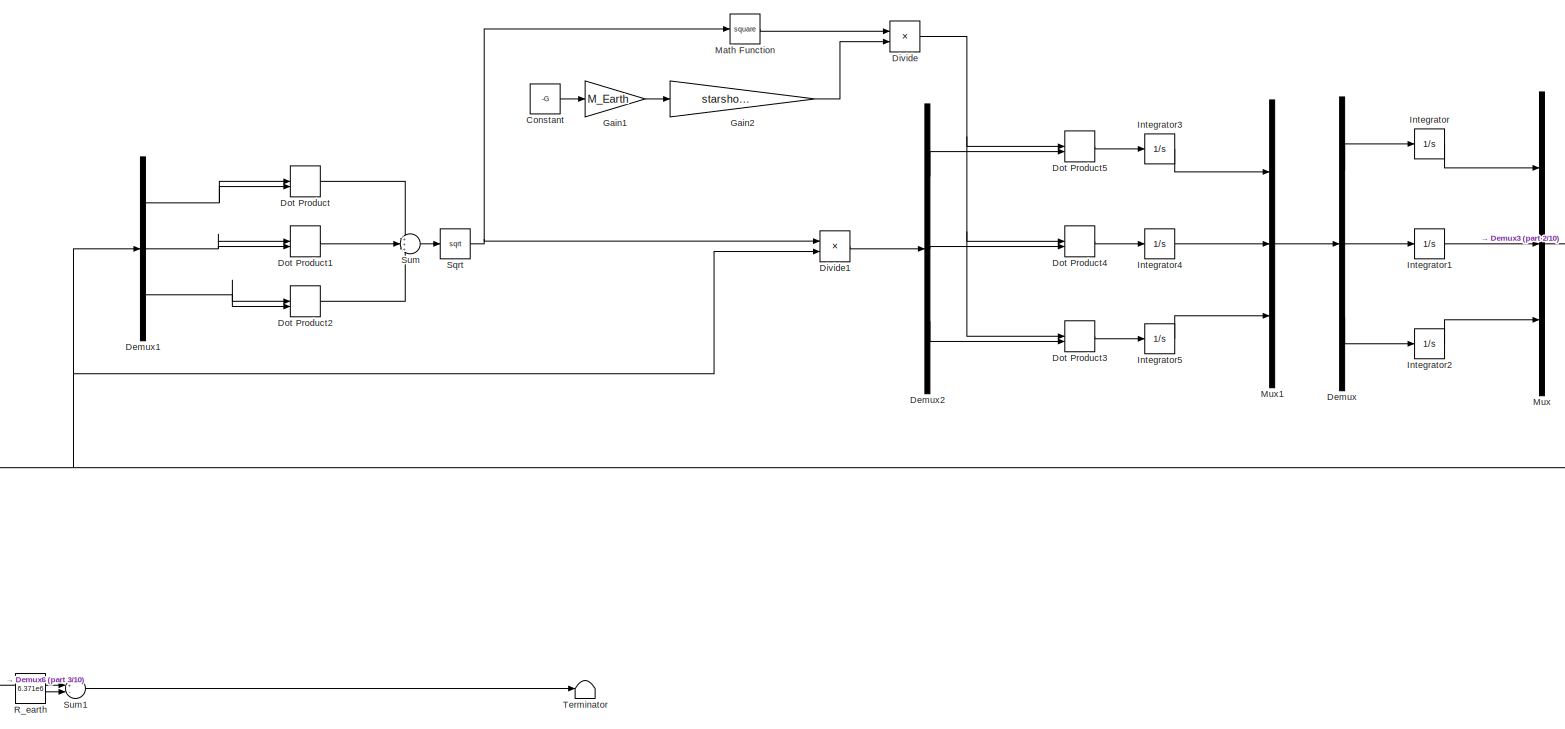
[diagram: root canvas - part 1/10, top left region]
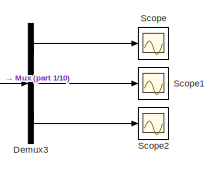
[diagram: root canvas - part 2/10, top center region]
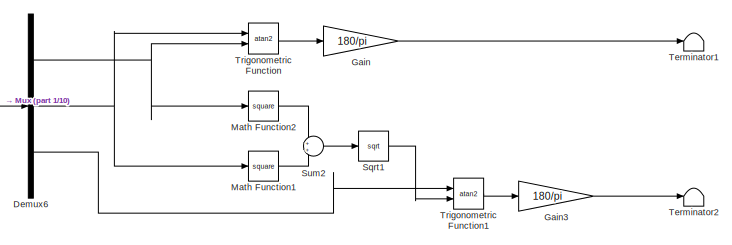
[diagram: root canvas - part 3/10, middle left region]
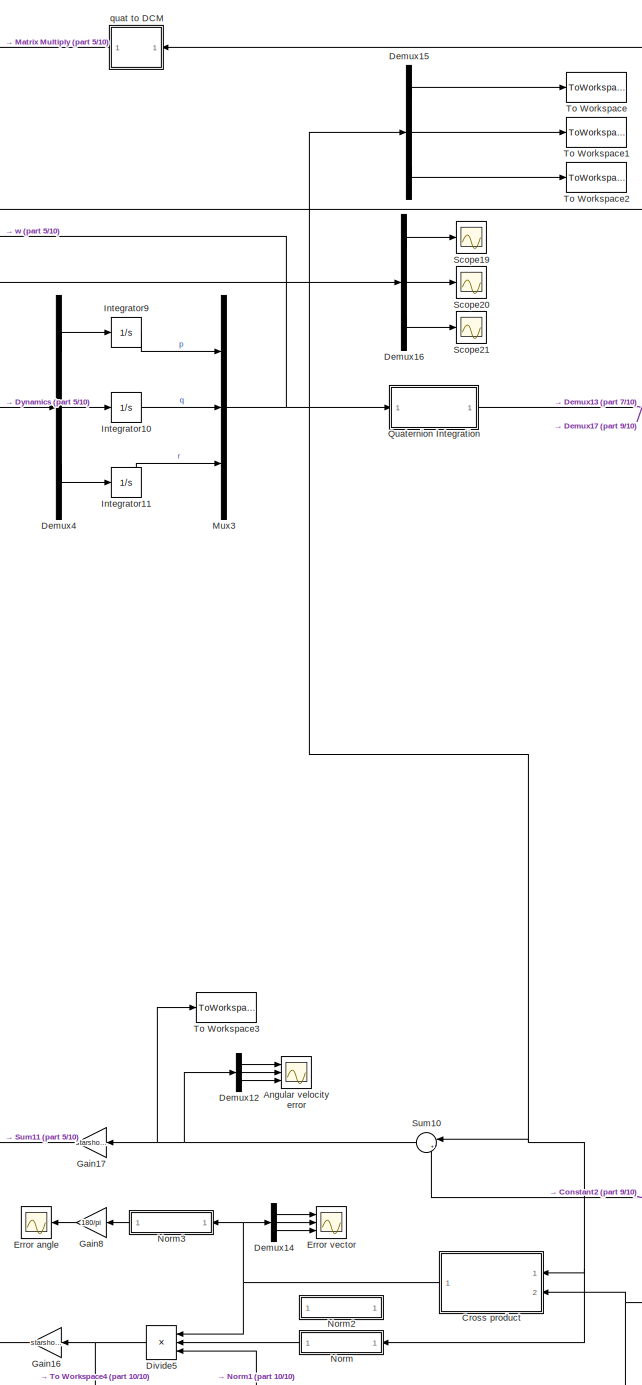
[diagram: root canvas - part 4/10, middle right region]
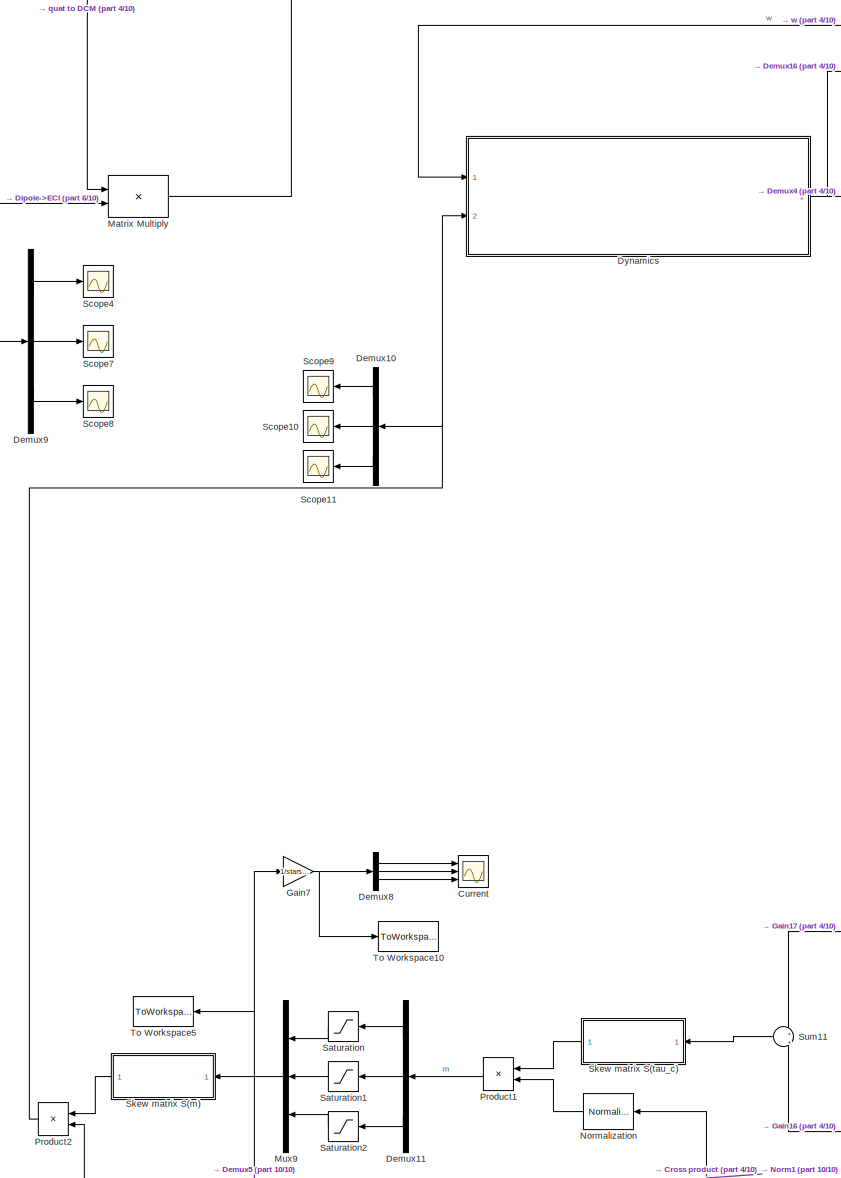
[diagram: root canvas - part 5/10, bottom center region]
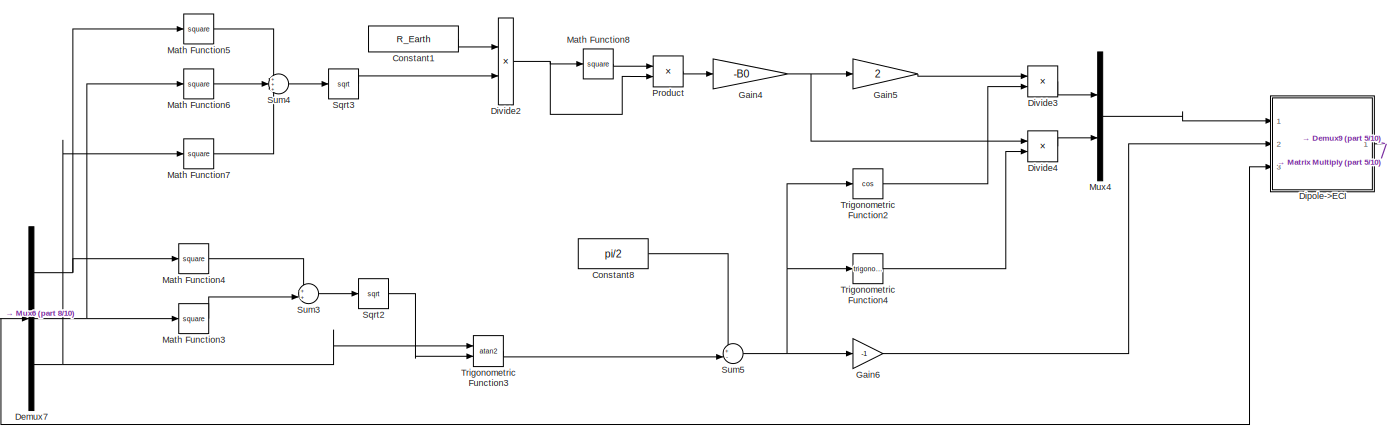
[diagram: root canvas - part 6/10, middle left region]
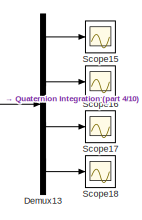
[diagram: root canvas - part 7/10, middle right region]
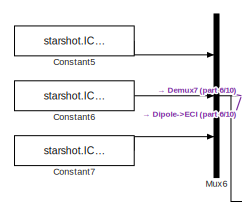
[diagram: root canvas - part 8/10, middle left region]
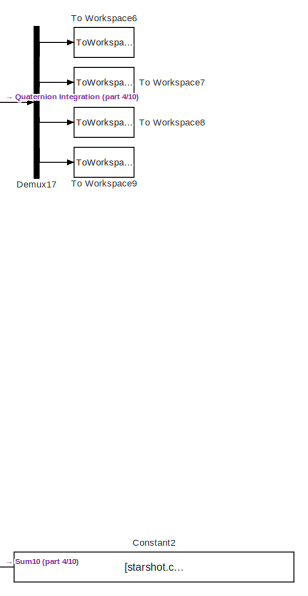
[diagram: root canvas - part 9/10, bottom right region]
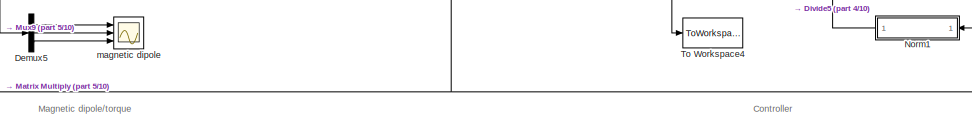
[diagram: root canvas - part 10/10, bottom center region]
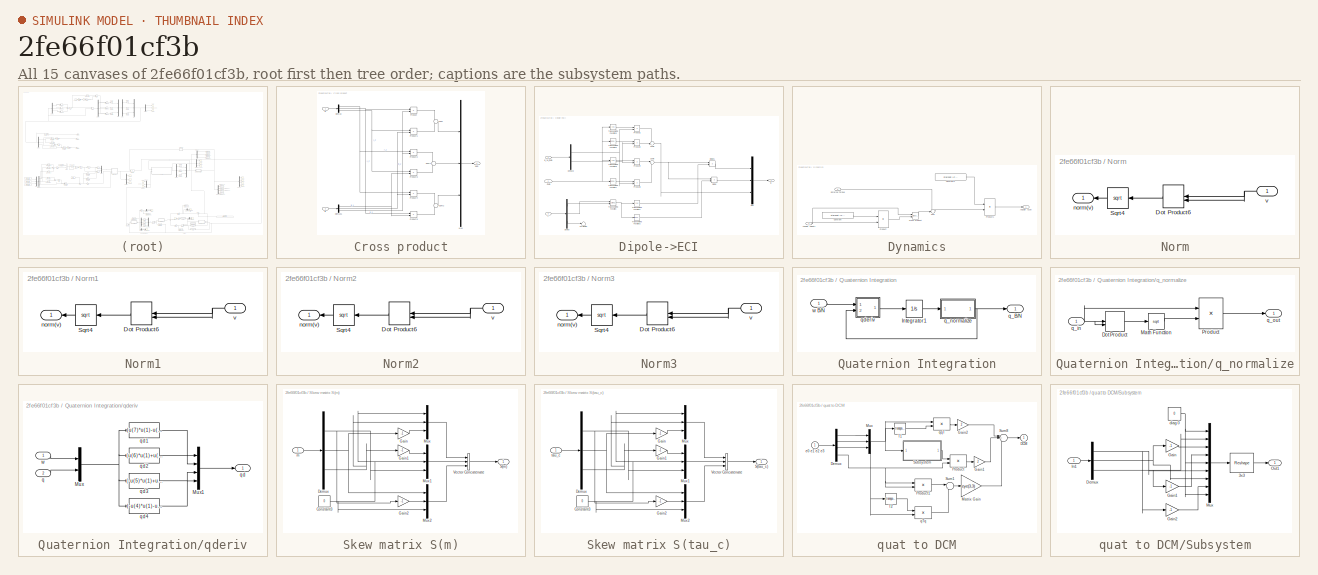
[diagram: thumbnail index - all 15 canvases of the model, root first then tree order]
MODEL slx_2fe66f01cf3b
KIND model
CONFIG AbsTol = auto
CONFIG EnableMultiTasking = off
CONFIG FixedStep = auto
CONFIG MaxStep = 4.0
CONFIG MinStep = .001
CONFIG RelTol = 1e-6
CONFIG SampleTimeConstraint = Unconstrained
CONFIG Solver = ode45
CONFIG SolverName = ode45
CONFIG StartTime = 0.0
CONFIG StopTime = 10000
BLOCK [Scope] Angular velocity error
  NumInputPorts = 3
  Ports = [3]
  ScopeSpecificationString = Simulink.scopes.TimeScopeBlockCfg('CurrentConfiguration', extmgr.ConfigurationSet(extmgr.Configuration('Core','General UI',true),extmgr.Configuration('Core','Source UI',true),extmgr.Configuration('Sources','WiredSimulink',true,'DataLoggingVariableName','ScopeData1'),extmgr.Configuration('Visuals','Time Domain',true,'SerializedDisplays',{struct('MinYLimReal','-0.69292','MaxYLimReal','0.65882','YLab...<+2726ch>
BLOCK [Constant] Constant
  Value = -G
BLOCK [Constant] Constant1
  Value = R_Earth
BLOCK [Constant] Constant2
  Value = [starshot.cmd.p,starshot.cmd.q,starshot.cmd.r]'
BLOCK [Constant] Constant5
  Value = starshot.IC.x
BLOCK [Constant] Constant6
  Value = starshot.IC.y
BLOCK [Constant] Constant7
  Value = starshot.IC.z
BLOCK [Constant] Constant8
  Value = pi/2
BLOCK [SubSystem] Cross product
  Ports = [2, 1]
  RequestExecContextInheritance = off
  Variant = off
BLOCK [Inport] Cross product/B
  IconDisplay = Port number
  Port = 2
BLOCK [Demux] Cross product/Demux
  DisplayOption = bar
  Outputs = 3
  Ports = [1, 3]
BLOCK [Demux] Cross product/Demux1
  DisplayOption = bar
  Outputs = 3
  Ports = [1, 3]
BLOCK [Mux] Cross product/Mux
  DisplayOption = bar
  Inputs = 3
  Ports = [3, 1]
BLOCK [Product] Cross product/Product
  InputSameDT = off
  OutDataTypeStr = Inherit: Inherit via internal rule
  Ports = [2, 1]
  RndMeth = Floor
  SaturateOnIntegerOverflow = off
BLOCK [Product] Cross product/Product1
  InputSameDT = off
  OutDataTypeStr = Inherit: Inherit via internal rule
  Ports = [2, 1]
  RndMeth = Floor
  SaturateOnIntegerOverflow = off
BLOCK [Product] Cross product/Product2
  InputSameDT = off
  OutDataTypeStr = Inherit: Inherit via internal rule
  Ports = [2, 1]
  RndMeth = Floor
  SaturateOnIntegerOverflow = off
BLOCK [Product] Cross product/Product3
  InputSameDT = off
  OutDataTypeStr = Inherit: Inherit via internal rule
  Ports = [2, 1]
  RndMeth = Floor
  SaturateOnIntegerOverflow = off
BLOCK [Product] Cross product/Product4
  InputSameDT = off
  OutDataTypeStr = Inherit: Inherit via internal rule
  Ports = [2, 1]
  RndMeth = Floor
  SaturateOnIntegerOverflow = off
BLOCK [Product] Cross product/Product5
  InputSameDT = off
  OutDataTypeStr = Inherit: Inherit via internal rule
  Ports = [2, 1]
  RndMeth = Floor
  SaturateOnIntegerOverflow = off
BLOCK [Sum] Cross product/Sum
  IconShape = round
  InputSameDT = off
  Inputs = +|-
  OutDataTypeStr = Inherit: Inherit via internal rule
  Ports = [2, 1]
  SaturateOnIntegerOverflow = off
BLOCK [Sum] Cross product/Sum1
  IconShape = round
  InputSameDT = off
  Inputs = -|+
  OutDataTypeStr = Inherit: Inherit via internal rule
  Ports = [2, 1]
  SaturateOnIntegerOverflow = off
BLOCK [Sum] Cross product/Sum2
  IconShape = round
  InputSameDT = off
  Inputs = +|-
  OutDataTypeStr = Inherit: Inherit via internal rule
  Ports = [2, 1]
  SaturateOnIntegerOverflow = off
BLOCK [Inport] Cross product/w
  IconDisplay = Port number
BLOCK [Outport] Cross product/wxB
  IconDisplay = Port number
BLOCK [Scope] Current
  NumInputPorts = 3
  Ports = [3]
  ScopeSpecificationString = Simulink.scopes.TimeScopeBlockCfg('CurrentConfiguration', extmgr.ConfigurationSet(extmgr.Configuration('Core','General UI',true),extmgr.Configuration('Core','Source UI',true),extmgr.Configuration('Sources','WiredSimulink',true,'DataLoggingVariableName','ScopeData2'),extmgr.Configuration('Visuals','Time Domain',true,'SerializedDisplays',{struct('MinYLimReal','-0.02824','MaxYLimReal','0.02909','YLab...<+2723ch>
BLOCK [Demux] Demux
  DisplayOption = bar
  Outputs = 3
  Ports = [1, 3]
BLOCK [Demux] Demux1
  DisplayOption = bar
  Outputs = 3
  Ports = [1, 3]
BLOCK [Demux] Demux10
  DisplayOption = bar
  Outputs = 3
  Ports = [1, 3]
BLOCK [Demux] Demux11
  DisplayOption = bar
  Outputs = 3
  Ports = [1, 3]
BLOCK [Demux] Demux12
  DisplayOption = bar
  Outputs = 3
  Ports = [1, 3]
BLOCK [Demux] Demux13
  DisplayOption = bar
  Ports = [1, 4]
BLOCK [Demux] Demux14
  DisplayOption = bar
  Outputs = 3
  Ports = [1, 3]
BLOCK [Demux] Demux15
  DisplayOption = bar
  Outputs = 3
  Ports = [1, 3]
BLOCK [Demux] Demux16
  DisplayOption = bar
  Outputs = 3
  Ports = [1, 3]
BLOCK [Demux] Demux17
  DisplayOption = bar
  Ports = [1, 4]
BLOCK [Demux] Demux2
  DisplayOption = bar
  Outputs = 3
  Ports = [1, 3]
BLOCK [Demux] Demux3
  DisplayOption = bar
  Outputs = 3
  Ports = [1, 3]
BLOCK [Demux] Demux4
  DisplayOption = bar
  Outputs = 3
  Ports = [1, 3]
BLOCK [Demux] Demux5
  DisplayOption = bar
  Outputs = 3
  Ports = [1, 3]
BLOCK [Demux] Demux6
  DisplayOption = bar
  Outputs = 3
  Ports = [1, 3]
BLOCK [Demux] Demux7
  DisplayOption = bar
  Outputs = 3
  Ports = [1, 3]
BLOCK [Demux] Demux8
  DisplayOption = bar
  Outputs = 3
  Ports = [1, 3]
BLOCK [Demux] Demux9
  DisplayOption = bar
  Outputs = 3
  Ports = [1, 3]
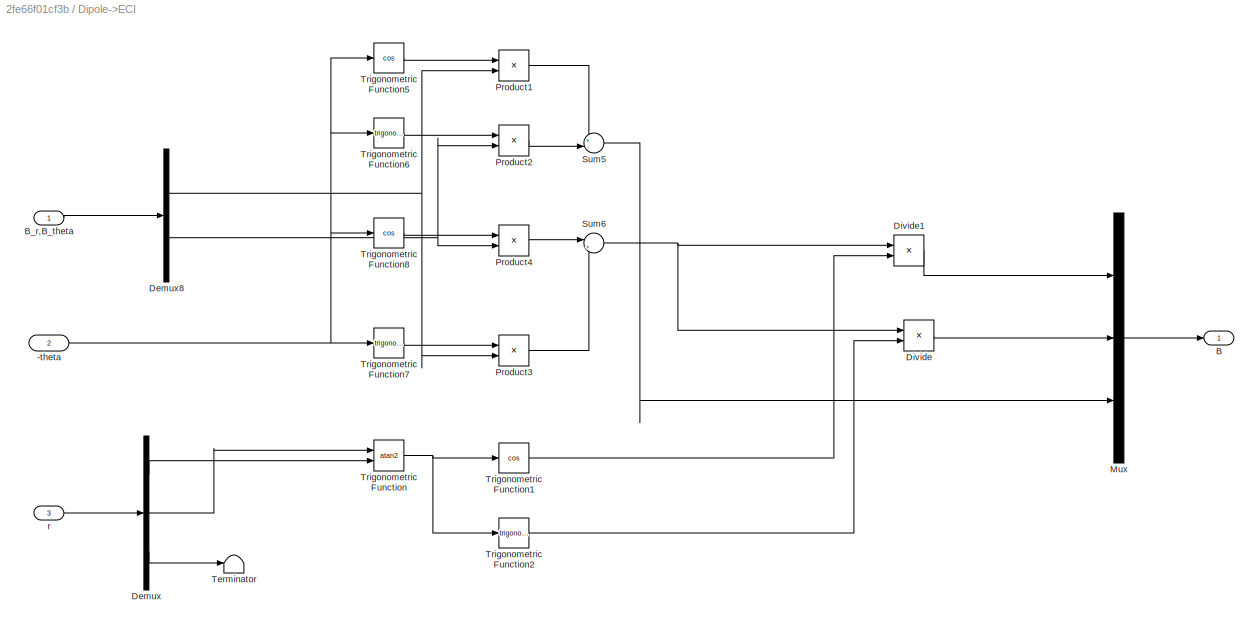
BLOCK [SubSystem] Dipole->ECI
  Ports = [3, 1]
  RequestExecContextInheritance = off
  Variant = off
BLOCK [Inport] Dipole->ECI/-theta
  IconDisplay = Port number
  Port = 2
BLOCK [Outport] Dipole->ECI/B
  IconDisplay = Port number
BLOCK [Inport] Dipole->ECI/B_r,B_theta
  IconDisplay = Port number
BLOCK [Demux] Dipole->ECI/Demux
  DisplayOption = bar
  Outputs = 3
  Ports = [1, 3]
BLOCK [Demux] Dipole->ECI/Demux8
  DisplayOption = bar
  Outputs = 2
  Ports = [1, 2]
BLOCK [Product] Dipole->ECI/Divide
  InputSameDT = off
  Inputs = **
  OutDataTypeStr = Inherit: Inherit via internal rule
  Ports = [2, 1]
  RndMeth = Floor
  SaturateOnIntegerOverflow = off
BLOCK [Product] Dipole->ECI/Divide1
  InputSameDT = off
  Inputs = **
  OutDataTypeStr = Inherit: Inherit via internal rule
  Ports = [2, 1]
  RndMeth = Floor
  SaturateOnIntegerOverflow = off
BLOCK [Mux] Dipole->ECI/Mux
  DisplayOption = bar
  Inputs = 3
  Ports = [3, 1]
BLOCK [Product] Dipole->ECI/Product1
  InputSameDT = off
  OutDataTypeStr = Inherit: Inherit via internal rule
  Ports = [2, 1]
  RndMeth = Floor
  SaturateOnIntegerOverflow = off
BLOCK [Product] Dipole->ECI/Product2
  InputSameDT = off
  OutDataTypeStr = Inherit: Inherit via internal rule
  Ports = [2, 1]
  RndMeth = Floor
  SaturateOnIntegerOverflow = off
BLOCK [Product] Dipole->ECI/Product3
  InputSameDT = off
  OutDataTypeStr = Inherit: Inherit via internal rule
  Ports = [2, 1]
  RndMeth = Floor
  SaturateOnIntegerOverflow = off
BLOCK [Product] Dipole->ECI/Product4
  InputSameDT = off
  OutDataTypeStr = Inherit: Inherit via internal rule
  Ports = [2, 1]
  RndMeth = Floor
  SaturateOnIntegerOverflow = off
BLOCK [Sum] Dipole->ECI/Sum5
  IconShape = round
  InputSameDT = off
  Inputs = +-|
  OutDataTypeStr = Inherit: Inherit via internal rule
  Ports = [2, 1]
  SaturateOnIntegerOverflow = off
BLOCK [Sum] Dipole->ECI/Sum6
  IconShape = round
  InputSameDT = off
  Inputs = |++
  OutDataTypeStr = Inherit: Inherit via internal rule
  Ports = [2, 1]
  SaturateOnIntegerOverflow = off
BLOCK [Terminator] Dipole->ECI/Terminator
BLOCK [Trigonometry] Dipole->ECI/Trigonometric Function
  Operator = atan2
  Ports = [2, 1]
BLOCK [Trigonometry] Dipole->ECI/Trigonometric Function1
  Operator = cos
  Ports = [1, 1]
BLOCK [Trigonometry] Dipole->ECI/Trigonometric Function2
  Ports = [1, 1]
BLOCK [Trigonometry] Dipole->ECI/Trigonometric Function5
  Operator = cos
  Ports = [1, 1]
BLOCK [Trigonometry] Dipole->ECI/Trigonometric Function6
  Ports = [1, 1]
BLOCK [Trigonometry] Dipole->ECI/Trigonometric Function7
  Ports = [1, 1]
BLOCK [Trigonometry] Dipole->ECI/Trigonometric Function8
  Operator = cos
  Ports = [1, 1]
BLOCK [Inport] Dipole->ECI/r
  IconDisplay = Port number
  Port = 3
BLOCK [Product] Divide
  InputSameDT = off
  Inputs = /*
  OutDataTypeStr = Inherit: Inherit via internal rule
  Ports = [2, 1]
  RndMeth = Floor
  SaturateOnIntegerOverflow = off
BLOCK [Product] Divide1
  InputSameDT = off
  Inputs = /*
  OutDataTypeStr = Inherit: Inherit via internal rule
  Ports = [2, 1]
  RndMeth = Floor
  SaturateOnIntegerOverflow = off
BLOCK [Product] Divide2
  InputSameDT = off
  Inputs = */
  OutDataTypeStr = Inherit: Inherit via internal rule
  Ports = [2, 1]
  RndMeth = Floor
  SaturateOnIntegerOverflow = off
BLOCK [Product] Divide3
  InputSameDT = off
  Inputs = **
  OutDataTypeStr = Inherit: Inherit via internal rule
  Ports = [2, 1]
  RndMeth = Floor
  SaturateOnIntegerOverflow = off
BLOCK [Product] Divide4
  InputSameDT = off
  Inputs = **
  OutDataTypeStr = Inherit: Inherit via internal rule
  Ports = [2, 1]
  RndMeth = Floor
  SaturateOnIntegerOverflow = off
BLOCK [Product] Divide5
  InputSameDT = off
  Inputs = *//
  OutDataTypeStr = Inherit: Inherit via internal rule
  Ports = [3, 1]
  RndMeth = Floor
  SaturateOnIntegerOverflow = off
BLOCK [DotProduct] Dot Product
  OutDataTypeStr = Inherit: Inherit via internal rule
BLOCK [DotProduct] Dot Product1
  OutDataTypeStr = Inherit: Inherit via internal rule
BLOCK [DotProduct] Dot Product2
  OutDataTypeStr = Inherit: Inherit via internal rule
BLOCK [DotProduct] Dot Product3
  OutDataTypeStr = Inherit: Inherit via internal rule
BLOCK [DotProduct] Dot Product4
  OutDataTypeStr = Inherit: Inherit via internal rule
BLOCK [DotProduct] Dot Product5
  OutDataTypeStr = Inherit: Inherit via internal rule
BLOCK [SubSystem] Dynamics
  Ports = [2, 1]
  RequestExecContextInheritance = off
  Variant = off
BLOCK [Outport] Dynamics/Angular Accel
  IconDisplay = Port number
BLOCK [Inport] Dynamics/Angular Velocity
  IconDisplay = Port number
BLOCK [Constant] Dynamics/Constant
  Value = starshot.IC.massproperties.I
BLOCK [Constant] Dynamics/Constant1
  Value = starshot.IC.massproperties.Iinv
BLOCK [Reference] Dynamics/Cross Product  REF=vrlib/Utilities/Cross Product
  Ports = [2, 1]
  SourceBlock = vrlib/Utilities/Cross Product
  SourceProductBaseCode = VR
  SourceProductName = Simulink 3D Animation
  SourceType = Cross Product
BLOCK [Inport] Dynamics/External Torque
  IconDisplay = Port number
  Port = 2
BLOCK [Product] Dynamics/Product
  InputSameDT = off
  Multiplication = Matrix(*)
  OutDataTypeStr = Inherit: Inherit via internal rule
  Ports = [2, 1]
  RndMeth = Floor
  SaturateOnIntegerOverflow = off
BLOCK [Product] Dynamics/Product1
  InputSameDT = off
  Multiplication = Matrix(*)
  OutDataTypeStr = Inherit: Inherit via internal rule
  Ports = [2, 1]
  RndMeth = Floor
  SaturateOnIntegerOverflow = off
BLOCK [Sum] Dynamics/Sum
  IconShape = round
  InputSameDT = off
  Inputs = +-
  OutDataTypeStr = Inherit: Inherit via internal rule
  Ports = [2, 1]
  SaturateOnIntegerOverflow = off
BLOCK [Scope] Error angle
  NumInputPorts = 1
  Ports = [1]
  ScopeSpecificationString = Simulink.scopes.TimeScopeBlockCfg('CurrentConfiguration', extmgr.ConfigurationSet(extmgr.Configuration('Core','General UI',true),extmgr.Configuration('Core','Source UI',true),extmgr.Configuration('Sources','WiredSimulink',true,'DataLoggingVariableName','ScopeData3'),extmgr.Configuration('Visuals','Time Domain',true,'SerializedDisplays',{struct('MinYLimReal','-0.00013','MaxYLimReal','0.00115','YLab...<+1485ch>
BLOCK [Scope] Error vector
  NumInputPorts = 3
  Ports = [3]
  ScopeSpecificationString = Simulink.scopes.TimeScopeBlockCfg('CurrentConfiguration', extmgr.ConfigurationSet(extmgr.Configuration('Core','General UI',true),extmgr.Configuration('Core','Source UI',true),extmgr.Configuration('Sources','WiredSimulink',true,'DataLoggingVariableName','ScopeData4'),extmgr.Configuration('Visuals','Time Domain',true,'SerializedDisplays',{struct('MinYLimReal','-0.000021','MaxYLimReal','0.000021','YL...<+2691ch>
BLOCK [Gain] Gain
  Gain = 180/pi
  OutDataTypeStr = Inherit: Inherit via internal rule
  ParamDataTypeStr = Inherit: Inherit via internal rule
  SaturateOnIntegerOverflow = off
BLOCK [Gain] Gain1
  Gain = M_Earth
  OutDataTypeStr = Inherit: Inherit via internal rule
  ParamDataTypeStr = Inherit: Inherit via internal rule
  SaturateOnIntegerOverflow = off
BLOCK [Gain] Gain16
  Gain = starshot.cmd.Kp
  OutDataTypeStr = Inherit: Inherit via internal rule
  ParamDataTypeStr = Inherit: Inherit via internal rule
  SaturateOnIntegerOverflow = off
BLOCK [Gain] Gain17
  Gain = starshot.cmd.Kd
  OutDataTypeStr = Inherit: Inherit via internal rule
  ParamDataTypeStr = Inherit: Inherit via internal rule
  SaturateOnIntegerOverflow = off
BLOCK [Gain] Gain2
  Gain = starshot.IC.massproperties.m
  OutDataTypeStr = Inherit: Inherit via internal rule
  ParamDataTypeStr = Inherit: Inherit via internal rule
  SaturateOnIntegerOverflow = off
BLOCK [Gain] Gain3
  Gain = 180/pi
  OutDataTypeStr = Inherit: Inherit via internal rule
  ParamDataTypeStr = Inherit: Inherit via internal rule
  SaturateOnIntegerOverflow = off
BLOCK [Gain] Gain4
  Gain = -B0
  OutDataTypeStr = Inherit: Inherit via internal rule
  ParamDataTypeStr = Inherit: Inherit via internal rule
  SaturateOnIntegerOverflow = off
BLOCK [Gain] Gain5
  Gain = 2
  OutDataTypeStr = Inherit: Inherit via internal rule
  ParamDataTypeStr = Inherit: Inherit via internal rule
  SaturateOnIntegerOverflow = off
BLOCK [Gain] Gain6
  Gain = -1
  OutDataTypeStr = Inherit: Inherit via internal rule
  ParamDataTypeStr = Inherit: Inherit via internal rule
  SaturateOnIntegerOverflow = off
BLOCK [Gain] Gain7
  Gain = 1/starshot.magnetorq.k/starshot.magnetorq.n/starshot.magnetorq.A
  OutDataTypeStr = Inherit: Inherit via internal rule
  ParamDataTypeStr = Inherit: Inherit via internal rule
  SaturateOnIntegerOverflow = off
BLOCK [Gain] Gain8
  Gain = 180/pi
  OutDataTypeStr = Inherit: Inherit via internal rule
  ParamDataTypeStr = Inherit: Inherit via internal rule
  SaturateOnIntegerOverflow = off
BLOCK [Integrator] Integrator
  InitialCondition = starshot.IC.x
  Ports = [1, 1]
BLOCK [Integrator] Integrator1
  InitialCondition = starshot.IC.y
  Ports = [1, 1]
BLOCK [Integrator] Integrator10
  InitialCondition = starshot.IC.q
  Ports = [1, 1]
BLOCK [Integrator] Integrator11
  InitialCondition = starshot.IC.r
  Ports = [1, 1]
BLOCK [Integrator] Integrator2
  InitialCondition = starshot.IC.z
  Ports = [1, 1]
BLOCK [Integrator] Integrator3
  InitialCondition = starshot.IC.xdot
  Ports = [1, 1]
BLOCK [Integrator] Integrator4
  InitialCondition = starshot.IC.ydot
  Ports = [1, 1]
BLOCK [Integrator] Integrator5
  InitialCondition = starshot.IC.zdot
  Ports = [1, 1]
BLOCK [Integrator] Integrator9
  InitialCondition = starshot.IC.p
  Ports = [1, 1]
BLOCK [Math] Math Function
  Operator = square
  Ports = [1, 1]
BLOCK [Math] Math Function1
  Operator = square
  Ports = [1, 1]
BLOCK [Math] Math Function2
  Operator = square
  Ports = [1, 1]
BLOCK [Math] Math Function3
  Operator = square
  Ports = [1, 1]
BLOCK [Math] Math Function4
  Operator = square
  Ports = [1, 1]
BLOCK [Math] Math Function5
  Operator = square
  Ports = [1, 1]
BLOCK [Math] Math Function6
  Operator = square
  Ports = [1, 1]
BLOCK [Math] Math Function7
  Operator = square
  Ports = [1, 1]
BLOCK [Math] Math Function8
  Operator = square
  Ports = [1, 1]
BLOCK [Product] Matrix Multiply
  InputSameDT = off
  Multiplication = Matrix(*)
  OutDataTypeStr = Inherit: Inherit via internal rule
  Ports = [2, 1]
  RndMeth = Floor
  SaturateOnIntegerOverflow = off
BLOCK [Mux] Mux
  DisplayOption = bar
  Inputs = 3
  Ports = [3, 1]
BLOCK [Mux] Mux1
  DisplayOption = bar
  Inputs = 3
  Ports = [3, 1]
BLOCK [Mux] Mux3
  DisplayOption = bar
  Inputs = 3
  Ports = [3, 1]
BLOCK [Mux] Mux4
  DisplayOption = bar
  Inputs = 2
  Ports = [2, 1]
BLOCK [Mux] Mux6
  DisplayOption = bar
  Inputs = 3
  Ports = [3, 1]
BLOCK [Mux] Mux9
  DisplayOption = bar
  Inputs = 3
  Ports = [3, 1]
BLOCK [SubSystem] Norm
  Ports = [1, 1]
  RequestExecContextInheritance = off
  Variant = off
BLOCK [DotProduct] Norm/Dot Product6
  OutDataTypeStr = Inherit: Inherit via internal rule
BLOCK [Sqrt] Norm/Sqrt4
BLOCK [Outport] Norm/norm(v)
  IconDisplay = Port number
BLOCK [Inport] Norm/v
  IconDisplay = Port number
BLOCK [SubSystem] Norm1
  Ports = [1, 1]
  RequestExecContextInheritance = off
  Variant = off
BLOCK [DotProduct] Norm1/Dot Product6
  OutDataTypeStr = Inherit: Inherit via internal rule
BLOCK [Sqrt] Norm1/Sqrt4
BLOCK [Outport] Norm1/norm(v)
  IconDisplay = Port number
BLOCK [Inport] Norm1/v
  IconDisplay = Port number
BLOCK [SubSystem] Norm2
  Commented = on
  Ports = [1, 1]
  RequestExecContextInheritance = off
  Variant = off
BLOCK [DotProduct] Norm2/Dot Product6
  OutDataTypeStr = Inherit: Inherit via internal rule
BLOCK [Sqrt] Norm2/Sqrt4
BLOCK [Outport] Norm2/norm(v)
  IconDisplay = Port number
BLOCK [Inport] Norm2/v
  IconDisplay = Port number
BLOCK [SubSystem] Norm3
  Ports = [1, 1]
  RequestExecContextInheritance = off
  Variant = off
BLOCK [DotProduct] Norm3/Dot Product6
  OutDataTypeStr = Inherit: Inherit via internal rule
BLOCK [Sqrt] Norm3/Sqrt4
BLOCK [Outport] Norm3/norm(v)
  IconDisplay = Port number
BLOCK [Inport] Norm3/v
  IconDisplay = Port number
BLOCK [Reference] Normalization  REF=dspmathops/Normalization
  Ports = [1, 1]
  SourceBlock = dspmathops/Normalization
  SourceProductBaseCode = DS
  SourceProductName = DSP System Toolbox
  SourceType = Normalization
BLOCK [Product] Product
  InputSameDT = off
  OutDataTypeStr = Inherit: Inherit via internal rule
  Ports = [2, 1]
  RndMeth = Floor
  SaturateOnIntegerOverflow = off
BLOCK [Product] Product1
  InputSameDT = off
  Multiplication = Matrix(*)
  OutDataTypeStr = Inherit: Inherit via internal rule
  Ports = [2, 1]
  RndMeth = Floor
  SaturateOnIntegerOverflow = off
BLOCK [Product] Product2
  InputSameDT = off
  Multiplication = Matrix(*)
  OutDataTypeStr = Inherit: Inherit via internal rule
  Ports = [2, 1]
  RndMeth = Floor
  SaturateOnIntegerOverflow = off
BLOCK [SubSystem] Quaternion Integration
  Ports = [1, 1]
  RequestExecContextInheritance = off
  Variant = off
BLOCK [Integrator] Quaternion Integration/Integrator1
  InitialCondition = q0
  Ports = [1, 1]
BLOCK [Outport] Quaternion Integration/q_B//N
  IconDisplay = Port number
BLOCK [SubSystem] Quaternion Integration/q_normalize
  Ports = [1, 1]
  RequestExecContextInheritance = off
  Variant = off
BLOCK [DotProduct] Quaternion Integration/q_normalize/Dot Product
  OutDataTypeStr = Inherit: Inherit via internal rule
BLOCK [Math] Quaternion Integration/q_normalize/Math Function
  Operator = sqrt
  Ports = [1, 1]
BLOCK [Product] Quaternion Integration/q_normalize/Product
  Inputs = */
  Ports = [2, 1]
  RndMeth = Floor
BLOCK [Inport] Quaternion Integration/q_normalize/q_in
  IconDisplay = Port number
  PortDimensions = 4
BLOCK [Outport] Quaternion Integration/q_normalize/q_out
  IconDisplay = Port number
BLOCK [SubSystem] Quaternion Integration/qderiv
  Ports = [2, 1]
  RequestExecContextInheritance = off
  Variant = off
BLOCK [Mux] Quaternion Integration/qderiv/Mux
  DisplayOption = bar
  Inputs = 2
  Ports = [2, 1]
BLOCK [Mux] Quaternion Integration/qderiv/Mux1
  DisplayOption = bar
  Ports = [4, 1]
BLOCK [Inport] Quaternion Integration/qderiv/q
  IconDisplay = Port number
  Port = 2
BLOCK [Outport] Quaternion Integration/qderiv/qd
  IconDisplay = Port number
BLOCK [Fcn] Quaternion Integration/qderiv/qd1
  Expr = (u(7)*u(1)-u(6)*u(2)+u(5)*u(3))/2
BLOCK [Fcn] Quaternion Integration/qderiv/qd2
  Expr = (u(6)*u(1)+u(7)*u(2)-u(4)*u(3))/2
BLOCK [Fcn] Quaternion Integration/qderiv/qd3
  Expr = (-u(5)*u(1)+u(4)*u(2)+u(7)*u(3))/2
BLOCK [Fcn] Quaternion Integration/qderiv/qd4
  Expr = (-u(4)*u(1)-u(5)*u(2)-u(6)*u(3))/2
BLOCK [Inport] Quaternion Integration/qderiv/w
  IconDisplay = Port number
BLOCK [Inport] Quaternion Integration/w B//N
  IconDisplay = Port number
BLOCK [Constant] R_earth
  Value = 6.371e6
BLOCK [Saturate] Saturation
  InputPortMap = u0
  LowerLimit = -starshot.magnetorq.m_max_x
  Ports = [1, 1]
  UpperLimit = starshot.magnetorq.m_max_x
BLOCK [Saturate] Saturation1
  InputPortMap = u0
  LowerLimit = -starshot.magnetorq.m_max_y
  Ports = [1, 1]
  UpperLimit = starshot.magnetorq.m_max_y
BLOCK [Saturate] Saturation2
  InputPortMap = u0
  LowerLimit = -starshot.magnetorq.m_max_z
  Ports = [1, 1]
  UpperLimit = starshot.magnetorq.m_max_z
BLOCK [Scope] Scope
  NumInputPorts = 1
  Ports = [1]
  ScopeSpecificationString = Simulink.scopes.TimeScopeBlockCfg('CurrentConfiguration', extmgr.ConfigurationSet(extmgr.Configuration('Core','General UI',true),extmgr.Configuration('Core','Source UI',true),extmgr.Configuration('Sources','WiredSimulink',true),extmgr.Configuration('Visuals','Time Domain',true,'SerializedDisplays',{struct('MinYLimReal','-6825378.18868','MaxYLimReal','8536153.13208','YLabelReal','','MinYLimMag','  ...<+1402ch>
BLOCK [Scope] Scope1
  NumInputPorts = 1
  Ports = [1]
  ScopeSpecificationString = Simulink.scopes.TimeScopeBlockCfg('CurrentConfiguration', extmgr.ConfigurationSet(extmgr.Configuration('Core','General UI',true),extmgr.Configuration('Core','Source UI',true),extmgr.Configuration('Sources','WiredSimulink',true,'DataLoggingVariableName','ScopeData1'),extmgr.Configuration('Visuals','Time Domain',true,'SerializedDisplays',{struct('MinYLimReal','-7607124.84143','MaxYLimReal','7601220....<+1442ch>
BLOCK [Scope] Scope10
  NumInputPorts = 1
  Ports = [1]
  ScopeSpecificationString = Simulink.scopes.TimeScopeBlockCfg('CurrentConfiguration', extmgr.ConfigurationSet(extmgr.Configuration('Core','General UI',true),extmgr.Configuration('Core','Source UI',true),extmgr.Configuration('Sources','WiredSimulink',true,'DataLoggingVariableName','ScopeData1'),extmgr.Configuration('Visuals','Time Domain',true,'SerializedDisplays',{struct('MinYLimReal','-1.88286','MaxYLimReal','2.21621','YLab...<+1368ch>
BLOCK [Scope] Scope11
  NumInputPorts = 1
  Ports = [1]
  ScopeSpecificationString = Simulink.scopes.TimeScopeBlockCfg('CurrentConfiguration', extmgr.ConfigurationSet(extmgr.Configuration('Core','General UI',true),extmgr.Configuration('Core','Source UI',true),extmgr.Configuration('Sources','WiredSimulink',true,'DataLoggingVariableName','ScopeData2'),extmgr.Configuration('Visuals','Time Domain',true,'SerializedDisplays',{struct('MinYLimReal','-0.77445','MaxYLimReal','1.17012','YLab...<+1395ch>
BLOCK [Scope] Scope15
  NumInputPorts = 1
  Ports = [1]
  ScopeSpecificationString = Simulink.scopes.TimeScopeBlockCfg('CurrentConfiguration', extmgr.ConfigurationSet(extmgr.Configuration('Core','General UI',true),extmgr.Configuration('Core','Source UI',true),extmgr.Configuration('Sources','WiredSimulink',true,'DataLoggingVariableName','ScopeData1'),extmgr.Configuration('Visuals','Time Domain',true,'SerializedDisplays',{struct('MinYLimReal','-0.53345','MaxYLimReal','0.53345','YLab...<+1397ch>
BLOCK [Scope] Scope16
  NumInputPorts = 1
  Ports = [1]
  ScopeSpecificationString = Simulink.scopes.TimeScopeBlockCfg('CurrentConfiguration', extmgr.ConfigurationSet(extmgr.Configuration('Core','General UI',true),extmgr.Configuration('Core','Source UI',true),extmgr.Configuration('Sources','WiredSimulink',true,'DataLoggingVariableName','ScopeData2'),extmgr.Configuration('Visuals','Time Domain',true,'SerializedDisplays',{struct('MinYLimReal','-0.5412','MaxYLimReal','0.5407','YLabel...<+1391ch>
BLOCK [Scope] Scope17
  NumInputPorts = 1
  Ports = [1]
  ScopeSpecificationString = Simulink.scopes.TimeScopeBlockCfg('CurrentConfiguration', extmgr.ConfigurationSet(extmgr.Configuration('Core','General UI',true),extmgr.Configuration('Core','Source UI',true),extmgr.Configuration('Sources','WiredSimulink',true,'DataLoggingVariableName','ScopeData3'),extmgr.Configuration('Visuals','Time Domain',true,'SerializedDisplays',{struct('MinYLimReal','-1.13017','MaxYLimReal','1.13017','YLab...<+1396ch>
BLOCK [Scope] Scope18
  NumInputPorts = 1
  Ports = [1]
  ScopeSpecificationString = Simulink.scopes.TimeScopeBlockCfg('CurrentConfiguration', extmgr.ConfigurationSet(extmgr.Configuration('Core','General UI',true),extmgr.Configuration('Core','Source UI',true),extmgr.Configuration('Sources','WiredSimulink',true,'DataLoggingVariableName','ScopeData4'),extmgr.Configuration('Visuals','Time Domain',true,'SerializedDisplays',{struct('MinYLimReal','-1.12733','MaxYLimReal','1.12733','YLab...<+1396ch>
BLOCK [Scope] Scope19
  NumInputPorts = 1
  Ports = [1]
  ScopeSpecificationString = Simulink.scopes.TimeScopeBlockCfg('CurrentConfiguration', extmgr.ConfigurationSet(extmgr.Configuration('Core','General UI',true),extmgr.Configuration('Core','Source UI',true),extmgr.Configuration('Sources','WiredSimulink',true,'DataLoggingVariableName','ScopeData1'),extmgr.Configuration('Visuals','Time Domain',true,'SerializedDisplays',{struct('MinYLimReal','-0.000000000000000026','MaxYLimReal','0...<+1499ch>
BLOCK [Scope] Scope2
  NumInputPorts = 1
  Ports = [1]
  ScopeSpecificationString = Simulink.scopes.TimeScopeBlockCfg('CurrentConfiguration', extmgr.ConfigurationSet(extmgr.Configuration('Core','General UI',true),extmgr.Configuration('Core','Source UI',true),extmgr.Configuration('Sources','WiredSimulink',true,'DataLoggingVariableName','ScopeData2'),extmgr.Configuration('Visuals','Time Domain',true,'SerializedDisplays',{struct('MinYLimReal','-1.00000','MaxYLimReal','1.00000','YLab...<+1359ch>
BLOCK [Scope] Scope20
  NumInputPorts = 1
  Ports = [1]
  ScopeSpecificationString = Simulink.scopes.TimeScopeBlockCfg('CurrentConfiguration', extmgr.ConfigurationSet(extmgr.Configuration('Core','General UI',true),extmgr.Configuration('Core','Source UI',true),extmgr.Configuration('Sources','WiredSimulink',true,'DataLoggingVariableName','ScopeData2'),extmgr.Configuration('Visuals','Time Domain',true,'SerializedDisplays',{struct('MinYLimReal','-0.433','MaxYLimReal','0.42592','YLabel...<+1387ch>
BLOCK [Scope] Scope21
  NumInputPorts = 1
  Ports = [1]
  ScopeSpecificationString = Simulink.scopes.TimeScopeBlockCfg('CurrentConfiguration', extmgr.ConfigurationSet(extmgr.Configuration('Core','General UI',true),extmgr.Configuration('Core','Source UI',true),extmgr.Configuration('Sources','WiredSimulink',true,'DataLoggingVariableName','ScopeData3'),extmgr.Configuration('Visuals','Time Domain',true,'SerializedDisplays',{struct('MinYLimReal','-0.44087','MaxYLimReal','0.42942','YLab...<+1396ch>
BLOCK [Scope] Scope4
  NumInputPorts = 1
  Ports = [1]
  ScopeSpecificationString = Simulink.scopes.TimeScopeBlockCfg('CurrentConfiguration', extmgr.ConfigurationSet(extmgr.Configuration('Core','General UI',true),extmgr.Configuration('Core','Source UI',true),extmgr.Configuration('Sources','WiredSimulink',true,'DataLoggingVariableName','ScopeData2'),extmgr.Configuration('Visuals','Time Domain',true,'SerializedDisplays',{struct('MinYLimReal','0.0000000000000000000004','MaxYLimReal'...<+1501ch>
BLOCK [Scope] Scope7
  NumInputPorts = 1
  Ports = [1]
  ScopeSpecificationString = Simulink.scopes.TimeScopeBlockCfg('CurrentConfiguration', extmgr.ConfigurationSet(extmgr.Configuration('Core','General UI',true),extmgr.Configuration('Core','Source UI',true),extmgr.Configuration('Sources','WiredSimulink',true,'DataLoggingVariableName','ScopeData5'),extmgr.Configuration('Visuals','Time Domain',true,'SerializedDisplays',{struct('MinYLimReal','-1.00000','MaxYLimReal','1.00000','YLab...<+1367ch>
BLOCK [Scope] Scope8
  NumInputPorts = 1
  Ports = [1]
  ScopeSpecificationString = Simulink.scopes.TimeScopeBlockCfg('CurrentConfiguration', extmgr.ConfigurationSet(extmgr.Configuration('Core','General UI',true),extmgr.Configuration('Core','Source UI',true),extmgr.Configuration('Sources','WiredSimulink',true,'DataLoggingVariableName','ScopeData6'),extmgr.Configuration('Visuals','Time Domain',true,'SerializedDisplays',{struct('MinYLimReal','-0.000034','MaxYLimReal','-0.000014','Y...<+1406ch>
BLOCK [Scope] Scope9
  NumInputPorts = 1
  Ports = [1]
  ScopeSpecificationString = Simulink.scopes.TimeScopeBlockCfg('CurrentConfiguration', extmgr.ConfigurationSet(extmgr.Configuration('Core','General UI',true),extmgr.Configuration('Core','Source UI',true),extmgr.Configuration('Sources','WiredSimulink',true,'DataLoggingVariableName','ScopeData3'),extmgr.Configuration('Visuals','Time Domain',true,'SerializedDisplays',{struct('MinYLimReal','-1.62975','MaxYLimReal','2.38118','YLab...<+1395ch>
BLOCK [SubSystem] Skew matrix S(m)
  Ports = [1, 1]
  RequestExecContextInheritance = off
  Variant = off
BLOCK [Constant] Skew matrix S(m)/Constant3
  Value = 0
BLOCK [Demux] Skew matrix S(m)/Demux
  DisplayOption = bar
  Outputs = 3
  Ports = [1, 3]
BLOCK [Gain] Skew matrix S(m)/Gain
  Gain = -1
  OutDataTypeStr = Inherit: Inherit via internal rule
  ParamDataTypeStr = Inherit: Inherit via internal rule
  SaturateOnIntegerOverflow = off
BLOCK [Gain] Skew matrix S(m)/Gain1
  Gain = -1
  OutDataTypeStr = Inherit: Inherit via internal rule
  ParamDataTypeStr = Inherit: Inherit via internal rule
  SaturateOnIntegerOverflow = off
BLOCK [Gain] Skew matrix S(m)/Gain2
  Gain = -1
  OutDataTypeStr = Inherit: Inherit via internal rule
  ParamDataTypeStr = Inherit: Inherit via internal rule
  SaturateOnIntegerOverflow = off
BLOCK [Mux] Skew matrix S(m)/Mux
  DisplayOption = bar
  Inputs = 3
  Ports = [3, 1]
BLOCK [Mux] Skew matrix S(m)/Mux1
  DisplayOption = bar
  Inputs = 3
  Ports = [3, 1]
BLOCK [Mux] Skew matrix S(m)/Mux2
  DisplayOption = bar
  Inputs = 3
  Ports = [3, 1]
BLOCK [Outport] Skew matrix S(m)/S(m)
  IconDisplay = Port number
BLOCK [Concatenate] Skew matrix S(m)/Vector Concatenate
  ConcatenateDimension = 2
  Mode = Multidimensional array
  NumInputs = 3
  Ports = [3, 1]
BLOCK [Inport] Skew matrix S(m)/m
  IconDisplay = Port number
BLOCK [SubSystem] Skew matrix S(tau_c)
  Ports = [1, 1]
  RequestExecContextInheritance = off
  Variant = off
BLOCK [Constant] Skew matrix S(tau_c)/Constant3
  Value = 0
BLOCK [Demux] Skew matrix S(tau_c)/Demux
  DisplayOption = bar
  Outputs = 3
  Ports = [1, 3]
BLOCK [Gain] Skew matrix S(tau_c)/Gain
  Gain = -1
  OutDataTypeStr = Inherit: Inherit via internal rule
  ParamDataTypeStr = Inherit: Inherit via internal rule
  SaturateOnIntegerOverflow = off
BLOCK [Gain] Skew matrix S(tau_c)/Gain1
  Gain = -1
  OutDataTypeStr = Inherit: Inherit via internal rule
  ParamDataTypeStr = Inherit: Inherit via internal rule
  SaturateOnIntegerOverflow = off
BLOCK [Gain] Skew matrix S(tau_c)/Gain2
  Gain = -1
  OutDataTypeStr = Inherit: Inherit via internal rule
  ParamDataTypeStr = Inherit: Inherit via internal rule
  SaturateOnIntegerOverflow = off
BLOCK [Mux] Skew matrix S(tau_c)/Mux
  DisplayOption = bar
  Inputs = 3
  Ports = [3, 1]
BLOCK [Mux] Skew matrix S(tau_c)/Mux1
  DisplayOption = bar
  Inputs = 3
  Ports = [3, 1]
BLOCK [Mux] Skew matrix S(tau_c)/Mux2
  DisplayOption = bar
  Inputs = 3
  Ports = [3, 1]
BLOCK [Outport] Skew matrix S(tau_c)/S(tau_c)
  IconDisplay = Port number
BLOCK [Concatenate] Skew matrix S(tau_c)/Vector Concatenate
  ConcatenateDimension = 2
  Mode = Multidimensional array
  NumInputs = 3
  Ports = [3, 1]
BLOCK [Inport] Skew matrix S(tau_c)/tau_c
  IconDisplay = Port number
BLOCK [Sqrt] Sqrt
BLOCK [Sqrt] Sqrt1
BLOCK [Sqrt] Sqrt2
BLOCK [Sqrt] Sqrt3
BLOCK [Sum] Sum
  IconShape = round
  InputSameDT = off
  Inputs = +++
  OutDataTypeStr = Inherit: Inherit via internal rule
  Ports = [3, 1]
  SaturateOnIntegerOverflow = off
BLOCK [Sum] Sum1
  IconShape = round
  InputSameDT = off
  Inputs = +-|
  OutDataTypeStr = Inherit: Inherit via internal rule
  Ports = [2, 1]
  SaturateOnIntegerOverflow = off
BLOCK [Sum] Sum10
  IconShape = round
  InputSameDT = off
  Inputs = |+-
  OutDataTypeStr = Inherit: Inherit via internal rule
  Ports = [2, 1]
  SaturateOnIntegerOverflow = off
BLOCK [Sum] Sum11
  IconShape = round
  InputSameDT = off
  Inputs = +|+
  OutDataTypeStr = Inherit: Inherit via internal rule
  Ports = [2, 1]
  SaturateOnIntegerOverflow = off
BLOCK [Sum] Sum2
  IconShape = round
  InputSameDT = off
  OutDataTypeStr = Inherit: Inherit via internal rule
  Ports = [2, 1]
  SaturateOnIntegerOverflow = off
BLOCK [Sum] Sum3
  IconShape = round
  InputSameDT = off
  OutDataTypeStr = Inherit: Inherit via internal rule
  Ports = [2, 1]
  SaturateOnIntegerOverflow = off
BLOCK [Sum] Sum4
  IconShape = round
  InputSameDT = off
  Inputs = +++
  OutDataTypeStr = Inherit: Inherit via internal rule
  Ports = [3, 1]
  SaturateOnIntegerOverflow = off
BLOCK [Sum] Sum5
  IconShape = round
  InputSameDT = off
  Inputs = +-|
  OutDataTypeStr = Inherit: Inherit via internal rule
  Ports = [2, 1]
  SaturateOnIntegerOverflow = off
BLOCK [Terminator] Terminator
BLOCK [Terminator] Terminator1
BLOCK [Terminator] Terminator2
BLOCK [ToWorkspace] To Workspace
  FixptAsFi = on
  MaxDataPoints = inf
  Ports = [1]
  SampleTime = -1
  Save2DSignal = 3-D array (concatenate along third dimension)
  SaveFormat = Timeseries
  VariableName = p
BLOCK [ToWorkspace] To Workspace1
  FixptAsFi = on
  MaxDataPoints = inf
  Ports = [1]
  SampleTime = -1
  Save2DSignal = 3-D array (concatenate along third dimension)
  SaveFormat = Timeseries
  VariableName = q
BLOCK [ToWorkspace] To Workspace10
  FixptAsFi = on
  MaxDataPoints = inf
  Ports = [1]
  SampleTime = -1
  Save2DSignal = 3-D array (concatenate along third dimension)
  SaveFormat = Timeseries
  VariableName = current
BLOCK [ToWorkspace] To Workspace2
  FixptAsFi = on
  MaxDataPoints = inf
  Ports = [1]
  SampleTime = -1
  Save2DSignal = 3-D array (concatenate along third dimension)
  SaveFormat = Timeseries
  VariableName = r
BLOCK [ToWorkspace] To Workspace3
  FixptAsFi = on
  MaxDataPoints = inf
  Ports = [1]
  SampleTime = -1
  Save2DSignal = 3-D array (concatenate along third dimension)
  SaveFormat = Timeseries
  VariableName = w_error_out
BLOCK [ToWorkspace] To Workspace4
  FixptAsFi = on
  MaxDataPoints = inf
  Ports = [1]
  SampleTime = -1
  Save2DSignal = 3-D array (concatenate along third dimension)
  SaveFormat = Timeseries
  VariableName = theta_error_out
BLOCK [ToWorkspace] To Workspace5
  FixptAsFi = on
  MaxDataPoints = inf
  Ports = [1]
  SampleTime = -1
  Save2DSignal = 3-D array (concatenate along third dimension)
  SaveFormat = Timeseries
  VariableName = m_out
BLOCK [ToWorkspace] To Workspace6
  FixptAsFi = on
  MaxDataPoints = inf
  Ports = [1]
  SampleTime = -1
  Save2DSignal = 3-D array (concatenate along third dimension)
  SaveFormat = Timeseries
  VariableName = q1
BLOCK [ToWorkspace] To Workspace7
  FixptAsFi = on
  MaxDataPoints = inf
  Ports = [1]
  SampleTime = -1
  Save2DSignal = 3-D array (concatenate along third dimension)
  SaveFormat = Timeseries
  VariableName = q2
BLOCK [ToWorkspace] To Workspace8
  FixptAsFi = on
  MaxDataPoints = inf
  Ports = [1]
  SampleTime = -1
  Save2DSignal = 3-D array (concatenate along third dimension)
  SaveFormat = Timeseries
  VariableName = q3
BLOCK [ToWorkspace] To Workspace9
  FixptAsFi = on
  MaxDataPoints = inf
  Ports = [1]
  SampleTime = -1
  Save2DSignal = 3-D array (concatenate along third dimension)
  SaveFormat = Timeseries
  VariableName = q4
BLOCK [Trigonometry] Trigonometric Function
  Operator = atan2
  Ports = [2, 1]
BLOCK [Trigonometry] Trigonometric Function1
  Operator = atan2
  Ports = [2, 1]
BLOCK [Trigonometry] Trigonometric Function2
  Operator = cos
  Ports = [1, 1]
BLOCK [Trigonometry] Trigonometric Function3
  Operator = atan2
  Ports = [2, 1]
BLOCK [Trigonometry] Trigonometric Function4
  Ports = [1, 1]
BLOCK [Scope] magnetic dipole
  NumInputPorts = 3
  Ports = [3]
  ScopeSpecificationString = Simulink.scopes.TimeScopeBlockCfg('CurrentConfiguration', extmgr.ConfigurationSet(extmgr.Configuration('Core','General UI',true),extmgr.Configuration('Core','Source UI',true),extmgr.Configuration('Sources','WiredSimulink',true,'DataLoggingVariableName','ScopeData5'),extmgr.Configuration('Visuals','Time Domain',true,'SerializedDisplays',{struct('MinYLimReal','-0.12857','MaxYLimReal','0.13138','YLab...<+2774ch>
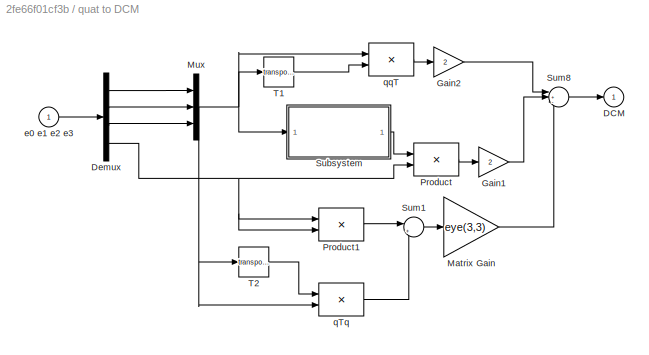
BLOCK [SubSystem] quat to DCM
  Ports = [1, 1]
  RequestExecContextInheritance = off
  ShowPortLabels = none
  Variant = off
BLOCK [Outport] quat to DCM/DCM
  IconDisplay = Port number
  InitialOutput = 0
BLOCK [Demux] quat to DCM/Demux
  Ports = [1, 4]
BLOCK [Gain] quat to DCM/Gain1
  Gain = 2
BLOCK [Gain] quat to DCM/Gain2
  Gain = 2
BLOCK [Gain] quat to DCM/Matrix Gain
  Gain = eye(3,3)
BLOCK [Mux] quat to DCM/Mux
  DisplayOption = bar
  Inputs = 3
  Ports = [3, 1]
BLOCK [Product] quat to DCM/Product
  Ports = [2, 1]
  RndMeth = Floor
BLOCK [Product] quat to DCM/Product1
  Ports = [2, 1]
  RndMeth = Floor
BLOCK [SubSystem] quat to DCM/Subsystem
  Ports = [1, 1]
  RequestExecContextInheritance = off
  Variant = off
BLOCK [Reshape] quat to DCM/Subsystem/3x3
  OutputDimensionality = Customize
  OutputDimensions = [3,3]
  Ports = [1, 1]
BLOCK [Demux] quat to DCM/Subsystem/Demux
  Outputs = 3
  Ports = [1, 3]
BLOCK [Gain] quat to DCM/Subsystem/Gain
  Gain = -1
BLOCK [Gain] quat to DCM/Subsystem/Gain1
  Gain = -1
BLOCK [Gain] quat to DCM/Subsystem/Gain2
  Gain = -1
BLOCK [Inport] quat to DCM/Subsystem/In1
  IconDisplay = Port number
BLOCK [Mux] quat to DCM/Subsystem/Mux
  DisplayOption = bar
  Inputs = 9
  Ports = [9, 1]
BLOCK [Outport] quat to DCM/Subsystem/Out1
  IconDisplay = Port number
BLOCK [Constant] quat to DCM/Subsystem/diag 0 
  Value = 0
BLOCK [Sum] quat to DCM/Sum1
  IconShape = round
  Inputs = |+-
  Ports = [2, 1]
BLOCK [Sum] quat to DCM/Sum8
  IconShape = round
  Inputs = |+-+
  Ports = [3, 1]
BLOCK [Math] quat to DCM/T1
  Operator = transpose
  Ports = [1, 1]
BLOCK [Math] quat to DCM/T2
  Operator = transpose
  Ports = [1, 1]
BLOCK [Inport] quat to DCM/e0 e1 e2 e3
  IconDisplay = Port number
BLOCK [Product] quat to DCM/qTq
  Multiplication = Matrix(*)
  Ports = [2, 1]
  RndMeth = Floor
BLOCK [Product] quat to DCM/qqT
  Multiplication = Matrix(*)
  Ports = [2, 1]
  RndMeth = Floor
ANNOTATION (root): Controller
ANNOTATION (root): Magnetic dipole/torque
LINE Constant1:1 -> Divide2:1
LINE Constant2:1 -> Sum10:2
LINE Constant5:1 -> Mux6:1
LINE Constant6:1 -> Mux6:2
LINE Constant7:1 -> Mux6:3
LINE Constant8:1 -> Sum5:1
LINE Constant:1 -> Gain1:1
LINE Cross product/B:1 -> Cross product/Demux1:1
NET Cross product/Demux1:1 -> Cross product/Product3:2, Cross product/Product5:2
NET Cross product/Demux1:2 -> Cross product/Product1:2, Cross product/Product4:2
NET Cross product/Demux1:3 -> Cross product/Product2:2, Cross product/Product:2
NET Cross product/Demux:1 -> Cross product/Product2:1, Cross product/Product4:1
NET Cross product/Demux:2 -> Cross product/Product5:1, Cross product/Product:1
NET Cross product/Demux:3 -> Cross product/Product1:1, Cross product/Product3:1
LINE Cross product/Mux:1 -> Cross product/wxB:1
LINE Cross product/Product1:1 -> Cross product/Sum:2
LINE Cross product/Product2:1 -> Cross product/Sum1:1
LINE Cross product/Product3:1 -> Cross product/Sum1:2
LINE Cross product/Product4:1 -> Cross product/Sum2:1
LINE Cross product/Product5:1 -> Cross product/Sum2:2
LINE Cross product/Product:1 -> Cross product/Sum:1
LINE Cross product/Sum1:1 -> Cross product/Mux:2
LINE Cross product/Sum2:1 -> Cross product/Mux:3
LINE Cross product/Sum:1 -> Cross product/Mux:1
LINE Cross product/w:1 -> Cross product/Demux:1
NET Cross product:1 -> Demux14:1, Divide5:1, Norm3:1
LINE Demux10:1 -> Scope9:1
LINE Demux10:2 -> Scope10:1
LINE Demux10:3 -> Scope11:1
LINE Demux11:1 -> Saturation:1
LINE Demux11:2 -> Saturation1:1
LINE Demux11:3 -> Saturation2:1
LINE Demux12:1 -> Angular velocity error:1
LINE Demux12:2 -> Angular velocity error:2
LINE Demux12:3 -> Angular velocity error:3
LINE Demux13:1 -> Scope15:1
LINE Demux13:2 -> Scope16:1
LINE Demux13:3 -> Scope17:1
LINE Demux13:4 -> Scope18:1
LINE Demux14:1 -> Error vector:1
LINE Demux14:2 -> Error vector:2
LINE Demux14:3 -> Error vector:3
LINE Demux15:1 -> To Workspace:1
LINE Demux15:2 -> To Workspace1:1
LINE Demux15:3 -> To Workspace2:1
LINE Demux16:1 -> Scope19:1
LINE Demux16:2 -> Scope20:1
LINE Demux16:3 -> Scope21:1
LINE Demux17:1 -> To Workspace6:1
LINE Demux17:2 -> To Workspace7:1
LINE Demux17:3 -> To Workspace8:1
LINE Demux17:4 -> To Workspace9:1
NET Demux1:1 -> Dot Product:1, Dot Product:2
NET Demux1:2 -> Dot Product1:1, Dot Product1:2
NET Demux1:3 -> Dot Product2:1, Dot Product2:2
LINE Demux2:1 -> Dot Product5:2
LINE Demux2:2 -> Dot Product4:2
LINE Demux2:3 -> Dot Product3:2
LINE Demux3:1 -> Scope:1
LINE Demux3:2 -> Scope1:1
LINE Demux3:3 -> Scope2:1
LINE Demux4:1 -> Integrator9:1
LINE Demux4:2 -> Integrator10:1
LINE Demux4:3 -> Integrator11:1
LINE Demux5:1 -> magnetic dipole:1
LINE Demux5:2 -> magnetic dipole:2
LINE Demux5:3 -> magnetic dipole:3
NET Demux6:1 -> Math Function2:1, Trigonometric Function:2
NET Demux6:2 -> Math Function1:1, Trigonometric Function:1
LINE Demux6:3 -> Trigonometric Function1:1
NET Demux7:1 -> Math Function4:1, Math Function5:1
NET Demux7:2 -> Math Function3:1, Math Function6:1
NET Demux7:3 -> Math Function7:1, Trigonometric Function3:1
LINE Demux8:1 -> Current:1
LINE Demux8:2 -> Current:2
LINE Demux8:3 -> Current:3
LINE Demux9:1 -> Scope4:1
LINE Demux9:2 -> Scope7:1
LINE Demux9:3 -> Scope8:1
LINE Demux:1 -> Integrator:1
LINE Demux:2 -> Integrator1:1
LINE Demux:3 -> Integrator2:1
NET Dipole->ECI/-theta:1 -> Dipole->ECI/Trigonometric Function5:1, Dipole->ECI/Trigonometric Function6:1, Dipole->ECI/Trigonometric Function7:1, Dipole->ECI/Trigonometric Function8:1
LINE Dipole->ECI/B_r,B_theta:1 -> Dipole->ECI/Demux8:1
NET Dipole->ECI/Demux8:1 -> Dipole->ECI/Product1:2, Dipole->ECI/Product3:2
NET Dipole->ECI/Demux8:2 -> Dipole->ECI/Product2:2, Dipole->ECI/Product4:2
LINE Dipole->ECI/Demux:1 -> Dipole->ECI/Trigonometric Function:2
LINE Dipole->ECI/Demux:2 -> Dipole->ECI/Trigonometric Function:1
LINE Dipole->ECI/Demux:3 -> Dipole->ECI/Terminator:1
LINE Dipole->ECI/Divide1:1 -> Dipole->ECI/Mux:1
LINE Dipole->ECI/Divide:1 -> Dipole->ECI/Mux:2
LINE Dipole->ECI/Mux:1 -> Dipole->ECI/B:1
LINE Dipole->ECI/Product1:1 -> Dipole->ECI/Sum5:1
LINE Dipole->ECI/Product2:1 -> Dipole->ECI/Sum5:2
LINE Dipole->ECI/Product3:1 -> Dipole->ECI/Sum6:2
LINE Dipole->ECI/Product4:1 -> Dipole->ECI/Sum6:1
LINE Dipole->ECI/Sum5:1 -> Dipole->ECI/Mux:3
NET Dipole->ECI/Sum6:1 -> Dipole->ECI/Divide1:1, Dipole->ECI/Divide:1
LINE Dipole->ECI/Trigonometric Function1:1 -> Dipole->ECI/Divide1:2
LINE Dipole->ECI/Trigonometric Function2:1 -> Dipole->ECI/Divide:2
LINE Dipole->ECI/Trigonometric Function5:1 -> Dipole->ECI/Product1:1
LINE Dipole->ECI/Trigonometric Function6:1 -> Dipole->ECI/Product2:1
LINE Dipole->ECI/Trigonometric Function7:1 -> Dipole->ECI/Product3:1
LINE Dipole->ECI/Trigonometric Function8:1 -> Dipole->ECI/Product4:1
NET Dipole->ECI/Trigonometric Function:1 -> Dipole->ECI/Trigonometric Function1:1, Dipole->ECI/Trigonometric Function2:1
LINE Dipole->ECI/r:1 -> Dipole->ECI/Demux:1
NET Dipole->ECI:1 -> Demux9:1, Matrix Multiply:2
LINE Divide1:1 -> Demux2:1
NET Divide2:1 -> Math Function8:1, Product:2
LINE Divide3:1 -> Mux4:1
LINE Divide4:1 -> Mux4:2
NET Divide5:1 -> Gain16:1, To Workspace4:1
NET Divide:1 -> Dot Product3:1, Dot Product4:1, Dot Product5:1
LINE Dot Product1:1 -> Sum:2
LINE Dot Product2:1 -> Sum:3
LINE Dot Product3:1 -> Integrator5:1
LINE Dot Product4:1 -> Integrator4:1
LINE Dot Product5:1 -> Integrator3:1
LINE Dot Product:1 -> Sum:1
NET Dynamics/Angular Velocity:1 -> Dynamics/Cross Product:1, Dynamics/Product:2
LINE Dynamics/Constant1:1 -> Dynamics/Product1:1
LINE Dynamics/Constant:1 -> Dynamics/Product:1
LINE Dynamics/Cross Product:1 -> Dynamics/Sum:2
LINE Dynamics/External Torque:1 -> Dynamics/Sum:1
LINE Dynamics/Product1:1 -> Dynamics/Angular Accel:1
LINE Dynamics/Product:1 -> Dynamics/Cross Product:2
LINE Dynamics/Sum:1 -> Dynamics/Product1:2
NET Dynamics:1 -> Demux16:1, Demux4:1
LINE Gain16:1 -> Sum11:2
LINE Gain17:1 -> Sum11:1
LINE Gain1:1 -> Gain2:1
LINE Gain2:1 -> Divide:2
LINE Gain3:1 -> Terminator2:1
NET Gain4:1 -> Divide4:1, Gain5:1
LINE Gain5:1 -> Divide3:1
LINE Gain6:1 -> Dipole->ECI:2
NET Gain7:1 -> Demux8:1, To Workspace10:1
LINE Gain8:1 -> Error angle:1
LINE Gain:1 -> Terminator1:1
LINE Integrator10:1 -> Mux3:2
LINE Integrator11:1 -> Mux3:3
LINE Integrator1:1 -> Mux:2
LINE Integrator2:1 -> Mux:3
LINE Integrator3:1 -> Mux1:1
LINE Integrator4:1 -> Mux1:2
LINE Integrator5:1 -> Mux1:3
LINE Integrator9:1 -> Mux3:1
LINE Integrator:1 -> Mux:1
LINE Math Function1:1 -> Sum2:2
LINE Math Function2:1 -> Sum2:1
LINE Math Function3:1 -> Sum3:2
LINE Math Function4:1 -> Sum3:1
LINE Math Function5:1 -> Sum4:1
LINE Math Function6:1 -> Sum4:2
LINE Math Function7:1 -> Sum4:3
LINE Math Function8:1 -> Product:1
LINE Math Function:1 -> Divide:1
NET Matrix Multiply:1 -> Cross product:2, Norm1:1, Normalization:1, Product2:2
LINE Mux1:1 -> Demux:1
NET Mux3:1 -> Cross product:1, Demux15:1, Dynamics:1, Norm:1, Quaternion Integration:1, Sum10:1
LINE Mux4:1 -> Dipole->ECI:1
NET Mux6:1 -> Demux7:1, Dipole->ECI:3
NET Mux9:1 -> Demux5:1, Gain7:1, Skew matrix S(m):1, To Workspace5:1
NET Mux:1 -> Demux1:1, Demux3:1, Demux6:1, Divide1:2, Sum1:1
LINE Norm/Dot Product6:1 -> Norm/Sqrt4:1
LINE Norm/Sqrt4:1 -> Norm/norm(v):1
NET Norm/v:1 -> Norm/Dot Product6:1, Norm/Dot Product6:2
LINE Norm1/Dot Product6:1 -> Norm1/Sqrt4:1
LINE Norm1/Sqrt4:1 -> Norm1/norm(v):1
NET Norm1/v:1 -> Norm1/Dot Product6:1, Norm1/Dot Product6:2
LINE Norm1:1 -> Divide5:3
LINE Norm2/Dot Product6:1 -> Norm2/Sqrt4:1
LINE Norm2/Sqrt4:1 -> Norm2/norm(v):1
NET Norm2/v:1 -> Norm2/Dot Product6:1, Norm2/Dot Product6:2
LINE Norm3/Dot Product6:1 -> Norm3/Sqrt4:1
LINE Norm3/Sqrt4:1 -> Norm3/norm(v):1
NET Norm3/v:1 -> Norm3/Dot Product6:1, Norm3/Dot Product6:2
LINE Norm3:1 -> Gain8:1
LINE Norm:1 -> Divide5:2
LINE Normalization:1 -> Product1:2
LINE Product1:1 -> Demux11:1
NET Product2:1 -> Demux10:1, Dynamics:2
LINE Product:1 -> Gain4:1
LINE Quaternion Integration/Integrator1:1 -> Quaternion Integration/q_normalize:1
LINE Quaternion Integration/q_normalize/Dot Product:1 -> Quaternion Integration/q_normalize/Math Function:1
LINE Quaternion Integration/q_normalize/Math Function:1 -> Quaternion Integration/q_normalize/Product:2
LINE Quaternion Integration/q_normalize/Product:1 -> Quaternion Integration/q_normalize/q_out:1
NET Quaternion Integration/q_normalize/q_in:1 -> Quaternion Integration/q_normalize/Dot Product:1, Quaternion Integration/q_normalize/Dot Product:2, Quaternion Integration/q_normalize/Product:1
NET Quaternion Integration/q_normalize:1 -> Quaternion Integration/q_B//N:1, Quaternion Integration/qderiv:2
LINE Quaternion Integration/qderiv/Mux1:1 -> Quaternion Integration/qderiv/qd:1
NET Quaternion Integration/qderiv/Mux:1 -> Quaternion Integration/qderiv/qd1:1, Quaternion Integration/qderiv/qd2:1, Quaternion Integration/qderiv/qd3:1, Quaternion Integration/qderiv/qd4:1
LINE Quaternion Integration/qderiv/q:1 -> Quaternion Integration/qderiv/Mux:2
LINE Quaternion Integration/qderiv/qd1:1 -> Quaternion Integration/qderiv/Mux1:1
LINE Quaternion Integration/qderiv/qd2:1 -> Quaternion Integration/qderiv/Mux1:2
LINE Quaternion Integration/qderiv/qd3:1 -> Quaternion Integration/qderiv/Mux1:3
LINE Quaternion Integration/qderiv/qd4:1 -> Quaternion Integration/qderiv/Mux1:4
LINE Quaternion Integration/qderiv/w:1 -> Quaternion Integration/qderiv/Mux:1
LINE Quaternion Integration/qderiv:1 -> Quaternion Integration/Integrator1:1
LINE Quaternion Integration/w B//N:1 -> Quaternion Integration/qderiv:1
NET Quaternion Integration:1 -> Demux13:1, Demux17:1, quat to DCM:1
LINE R_earth:1 -> Sum1:2
LINE Saturation1:1 -> Mux9:2
LINE Saturation2:1 -> Mux9:3
LINE Saturation:1 -> Mux9:1
NET Skew matrix S(m)/Constant3:1 -> Skew matrix S(m)/Mux1:2, Skew matrix S(m)/Mux2:3, Skew matrix S(m)/Mux:1
NET Skew matrix S(m)/Demux:1 -> Skew matrix S(m)/Gain2:1, Skew matrix S(m)/Mux1:3
NET Skew matrix S(m)/Demux:2 -> Skew matrix S(m)/Gain:1, Skew matrix S(m)/Mux2:1
NET Skew matrix S(m)/Demux:3 -> Skew matrix S(m)/Gain1:1, Skew matrix S(m)/Mux:2
LINE Skew matrix S(m)/Gain1:1 -> Skew matrix S(m)/Mux1:1
LINE Skew matrix S(m)/Gain2:1 -> Skew matrix S(m)/Mux2:2
LINE Skew matrix S(m)/Gain:1 -> Skew matrix S(m)/Mux:3
LINE Skew matrix S(m)/Mux1:1 -> Skew matrix S(m)/Vector Concatenate:2
LINE Skew matrix S(m)/Mux2:1 -> Skew matrix S(m)/Vector Concatenate:3
LINE Skew matrix S(m)/Mux:1 -> Skew matrix S(m)/Vector Concatenate:1
LINE Skew matrix S(m)/Vector Concatenate:1 -> Skew matrix S(m)/S(m):1
LINE Skew matrix S(m)/m:1 -> Skew matrix S(m)/Demux:1
LINE Skew matrix S(m):1 -> Product2:1
NET Skew matrix S(tau_c)/Constant3:1 -> Skew matrix S(tau_c)/Mux1:2, Skew matrix S(tau_c)/Mux2:3, Skew matrix S(tau_c)/Mux:1
NET Skew matrix S(tau_c)/Demux:1 -> Skew matrix S(tau_c)/Gain2:1, Skew matrix S(tau_c)/Mux1:3
NET Skew matrix S(tau_c)/Demux:2 -> Skew matrix S(tau_c)/Gain:1, Skew matrix S(tau_c)/Mux2:1
NET Skew matrix S(tau_c)/Demux:3 -> Skew matrix S(tau_c)/Gain1:1, Skew matrix S(tau_c)/Mux:2
LINE Skew matrix S(tau_c)/Gain1:1 -> Skew matrix S(tau_c)/Mux1:1
LINE Skew matrix S(tau_c)/Gain2:1 -> Skew matrix S(tau_c)/Mux2:2
LINE Skew matrix S(tau_c)/Gain:1 -> Skew matrix S(tau_c)/Mux:3
LINE Skew matrix S(tau_c)/Mux1:1 -> Skew matrix S(tau_c)/Vector Concatenate:2
LINE Skew matrix S(tau_c)/Mux2:1 -> Skew matrix S(tau_c)/Vector Concatenate:3
LINE Skew matrix S(tau_c)/Mux:1 -> Skew matrix S(tau_c)/Vector Concatenate:1
LINE Skew matrix S(tau_c)/Vector Concatenate:1 -> Skew matrix S(tau_c)/S(tau_c):1
LINE Skew matrix S(tau_c)/tau_c:1 -> Skew matrix S(tau_c)/Demux:1
LINE Skew matrix S(tau_c):1 -> Product1:1
LINE Sqrt1:1 -> Trigonometric Function1:2
LINE Sqrt2:1 -> Trigonometric Function3:2
LINE Sqrt3:1 -> Divide2:2
NET Sqrt:1 -> Divide1:1, Math Function:1
NET Sum10:1 -> Demux12:1, Gain17:1, To Workspace3:1
LINE Sum11:1 -> Skew matrix S(tau_c):1
LINE Sum1:1 -> Terminator:1
LINE Sum2:1 -> Sqrt1:1
LINE Sum3:1 -> Sqrt2:1
LINE Sum4:1 -> Sqrt3:1
NET Sum5:1 -> Gain6:1, Trigonometric Function2:1, Trigonometric Function4:1
LINE Sum:1 -> Sqrt:1
LINE Trigonometric Function1:1 -> Gain3:1
LINE Trigonometric Function2:1 -> Divide3:2
LINE Trigonometric Function3:1 -> Sum5:2
LINE Trigonometric Function4:1 -> Divide4:2
LINE Trigonometric Function:1 -> Gain:1
LINE quat to DCM/Demux:1 -> quat to DCM/Mux:1
LINE quat to DCM/Demux:2 -> quat to DCM/Mux:2
LINE quat to DCM/Demux:3 -> quat to DCM/Mux:3
NET quat to DCM/Demux:4 -> quat to DCM/Product1:1, quat to DCM/Product1:2, quat to DCM/Product:2
LINE quat to DCM/Gain1:1 -> quat to DCM/Sum8:2
LINE quat to DCM/Gain2:1 -> quat to DCM/Sum8:1
LINE quat to DCM/Matrix Gain:1 -> quat to DCM/Sum8:3
NET quat to DCM/Mux:1 -> quat to DCM/Subsystem:1, quat to DCM/T1:1, quat to DCM/T2:1, quat to DCM/qTq:2, quat to DCM/qqT:1
LINE quat to DCM/Product1:1 -> quat to DCM/Sum1:1
LINE quat to DCM/Product:1 -> quat to DCM/Gain1:1
LINE quat to DCM/Subsystem/3x3:1 -> quat to DCM/Subsystem/Out1:1
NET quat to DCM/Subsystem/Demux:1 -> quat to DCM/Subsystem/Gain2:1, quat to DCM/Subsystem/Mux:6
NET quat to DCM/Subsystem/Demux:2 -> quat to DCM/Subsystem/Gain:1, quat to DCM/Subsystem/Mux:7
NET quat to DCM/Subsystem/Demux:3 -> quat to DCM/Subsystem/Gain1:1, quat to DCM/Subsystem/Mux:2
LINE quat to DCM/Subsystem/Gain1:1 -> quat to DCM/Subsystem/Mux:4
LINE quat to DCM/Subsystem/Gain2:1 -> quat to DCM/Subsystem/Mux:8
LINE quat to DCM/Subsystem/Gain:1 -> quat to DCM/Subsystem/Mux:3
LINE quat to DCM/Subsystem/In1:1 -> quat to DCM/Subsystem/Demux:1
LINE quat to DCM/Subsystem/Mux:1 -> quat to DCM/Subsystem/3x3:1
NET quat to DCM/Subsystem/diag 0 :1 -> quat to DCM/Subsystem/Mux:1, quat to DCM/Subsystem/Mux:5, quat to DCM/Subsystem/Mux:9
LINE quat to DCM/Subsystem:1 -> quat to DCM/Product:1
LINE quat to DCM/Sum1:1 -> quat to DCM/Matrix Gain:1
LINE quat to DCM/Sum8:1 -> quat to DCM/DCM:1
LINE quat to DCM/T1:1 -> quat to DCM/qqT:2
LINE quat to DCM/T2:1 -> quat to DCM/qTq:1
LINE quat to DCM/e0 e1 e2 e3:1 -> quat to DCM/Demux:1
LINE quat to DCM/qTq:1 -> quat to DCM/Sum1:2
LINE quat to DCM/qqT:1 -> quat to DCM/Gain2:1
LINE quat to DCM:1 -> Matrix Multiply:1
note: NET lines group one-source signal fan-out (src -> all destinations, sorted); 1:1 wires keep LINE
